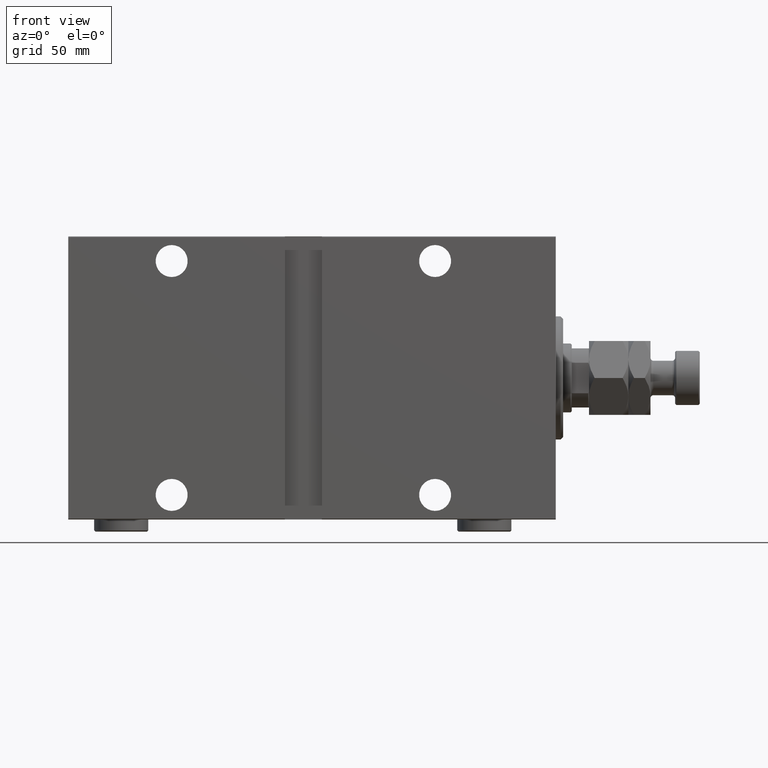
[diagram: clean part render]
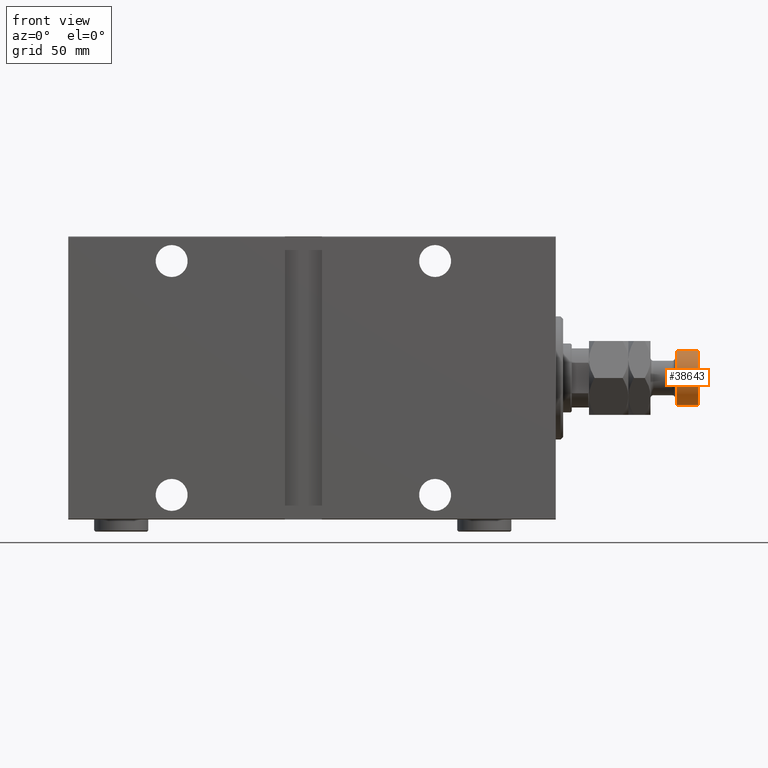
[diagram: same view with one face highlighted and labeled with its STEP entity id]
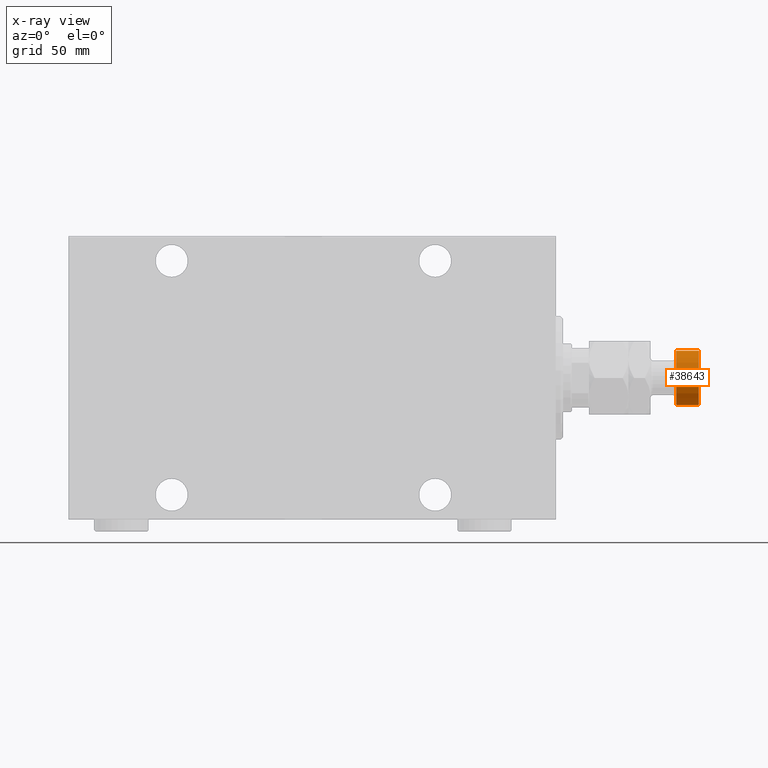
[diagram: x-ray of the same camera — body ghosted, the highlighted face saturated]
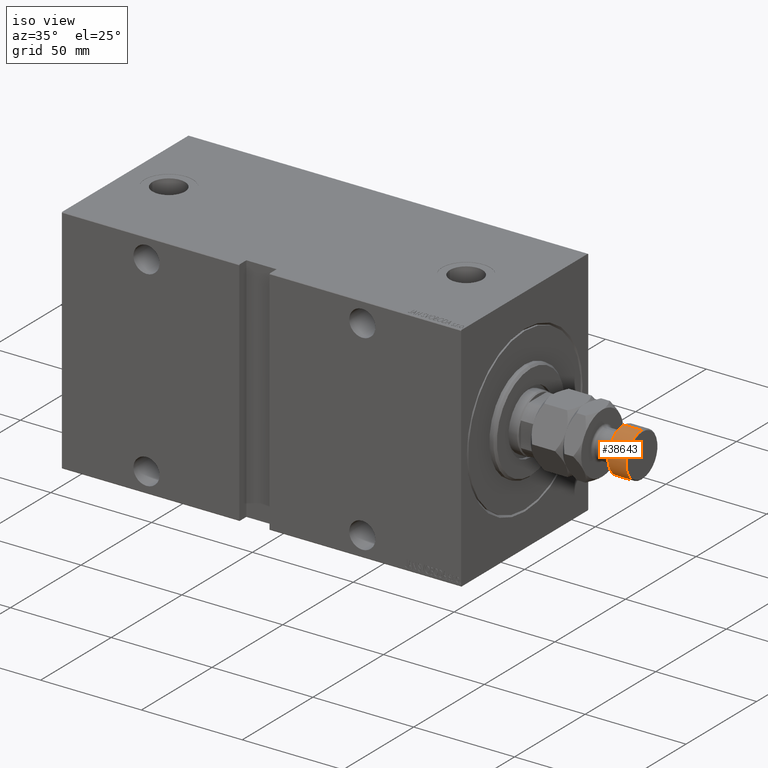
[diagram: same view with one face highlighted and labeled with its STEP entity id]
A machine part, front view. The second image highlights one B-rep face of the part: STEP entity #38643.
The next image is the same camera in x-ray: the body ghosted, the highlighted face saturated — about 0% of this face is hidden behind the body in this view.
A second angle (iso view) of the same face is appended — the face is thin or edge-on in the first view.
In plain terms, the highlighted cylindrical surface (edge-blend (fillet) strip) has radius 11 mm, axis along (-1, -0, 0).
Its self-contained STEP definition (entity closure, byte-faithful):
#2120 = AXIS2_PLACEMENT_3D ( 'NONE', #34078, #38012, #10075 ) ;
#2636 = AXIS2_PLACEMENT_3D ( 'NONE', #28223, #35653, #31945 ) ;
#3115 = DIRECTION ( 'NONE',  ( -0.000000000000000000, -0.000000000000000000, -1.000000000000000000 ) ) ;
#3342 = LINE ( 'NONE', #39415, #8828 ) ;
#4224 = CARTESIAN_POINT ( 'NONE',  ( -11.00000000000000000, 0.000000000000000000, 44.50000000000001421 ) ) ;
#7649 = CARTESIAN_POINT ( 'NONE',  ( 11.00000000000000000, 1.347111479062088405E-15, 35.50000000000001421 ) ) ;
#8828 = VECTOR ( 'NONE', #3115, 1000.000000000000000 ) ;
#8981 = VERTEX_POINT ( 'NONE', #20681 ) ;
#10075 = DIRECTION ( 'NONE',  ( 1.000000000000000000, 0.000000000000000000, 0.000000000000000000 ) ) ;
#12362 = DIRECTION ( 'NONE',  ( 1.000000000000000000, 0.000000000000000000, 0.000000000000000000 ) ) ;
#14016 = FACE_OUTER_BOUND ( 'NONE', #20814, .T. ) ;
#16519 = ORIENTED_EDGE ( 'NONE', *, *, #19991, .T. ) ;
#16988 = LINE ( 'NONE', #41884, #42692 ) ;
#17407 = VERTEX_POINT ( 'NONE', #7649 ) ;
#19991 = EDGE_CURVE ( 'NONE', #30795, #17407, #28151, .T. ) ;
#20681 = CARTESIAN_POINT ( 'NONE',  ( 11.00000000000000000, 1.347111479062088405E-15, 44.50000000000001421 ) ) ;
#20814 = EDGE_LOOP ( 'NONE', ( #24450, #43120, #28689, #16519 ) ) ;
#21684 = EDGE_CURVE ( 'NONE', #8981, #17407, #3342, .T. ) ;
#24450 = ORIENTED_EDGE ( 'NONE', *, *, #21684, .F. ) ;
#25675 = CIRCLE ( 'NONE', #27136, 11.00000000000000000 ) ;
#27136 = AXIS2_PLACEMENT_3D ( 'NONE', #30530, #44724, #12362 ) ;
#28151 = CIRCLE ( 'NONE', #2120, 11.00000000000000000 ) ;
#28223 = CARTESIAN_POINT ( 'NONE',  ( 0.000000000000000000, 0.000000000000000000, 45.00000000000000711 ) ) ;
#28689 = ORIENTED_EDGE ( 'NONE', *, *, #30684, .T. ) ;
#30530 = CARTESIAN_POINT ( 'NONE',  ( 0.000000000000000000, 0.000000000000000000, 44.50000000000001421 ) ) ;
#30684 = EDGE_CURVE ( 'NONE', #39550, #30795, #16988, .T. ) ;
#30795 = VERTEX_POINT ( 'NONE', #34361 ) ;
#31945 = DIRECTION ( 'NONE',  ( -1.000000000000000000, 0.000000000000000000, 0.000000000000000000 ) ) ;
#33054 = EDGE_CURVE ( 'NONE', #8981, #39550, #25675, .T. ) ;
#34078 = CARTESIAN_POINT ( 'NONE',  ( 0.000000000000000000, 0.000000000000000000, 35.50000000000001421 ) ) ;
#34361 = CARTESIAN_POINT ( 'NONE',  ( -11.00000000000000000, 0.000000000000000000, 35.50000000000001421 ) ) ;
#35419 = CYLINDRICAL_SURFACE ( 'NONE', #2636, 11.00000000000000000 ) ;
#35653 = DIRECTION ( 'NONE',  ( -0.000000000000000000, -0.000000000000000000, -1.000000000000000000 ) ) ;
#38012 = DIRECTION ( 'NONE',  ( -0.000000000000000000, -0.000000000000000000, 1.000000000000000000 ) ) ;
#38643 = ADVANCED_FACE ( 'NONE', ( #14016 ), #35419, .T. ) ;
#38832 = DIRECTION ( 'NONE',  ( -0.000000000000000000, -0.000000000000000000, -1.000000000000000000 ) ) ;
#39415 = CARTESIAN_POINT ( 'NONE',  ( 11.00000000000000000, 1.347111479062088405E-15, 45.00000000000000711 ) ) ;
#39550 = VERTEX_POINT ( 'NONE', #4224 ) ;
#41884 = CARTESIAN_POINT ( 'NONE',  ( -11.00000000000000000, 0.000000000000000000, 45.00000000000000711 ) ) ;
#42692 = VECTOR ( 'NONE', #38832, 1000.000000000000000 ) ;
#43120 = ORIENTED_EDGE ( 'NONE', *, *, #33054, .T. ) ;
#44724 = DIRECTION ( 'NONE',  ( 0.000000000000000000, 0.000000000000000000, -1.000000000000000000 ) ) ;